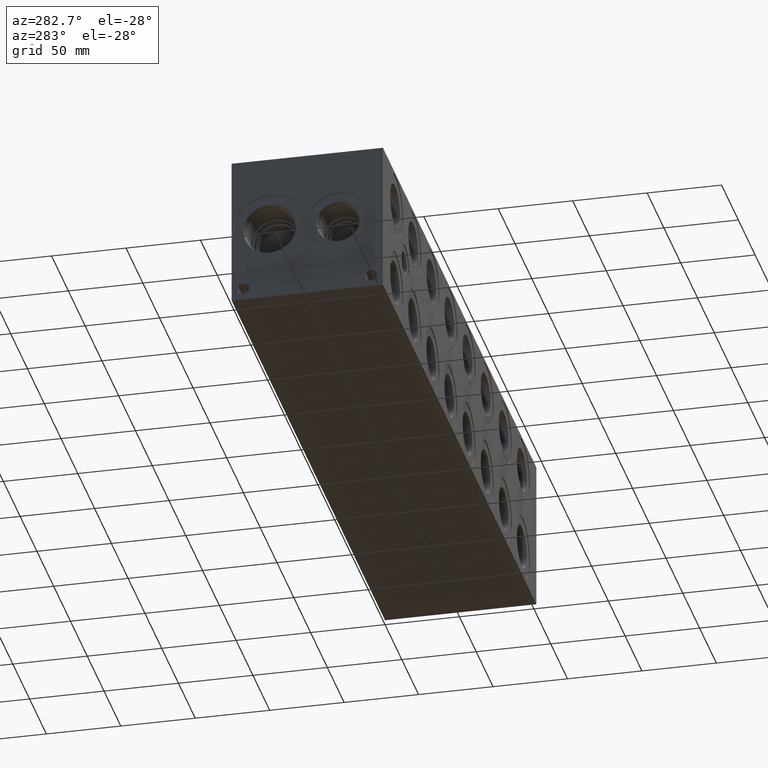
[diagram: clean part render]
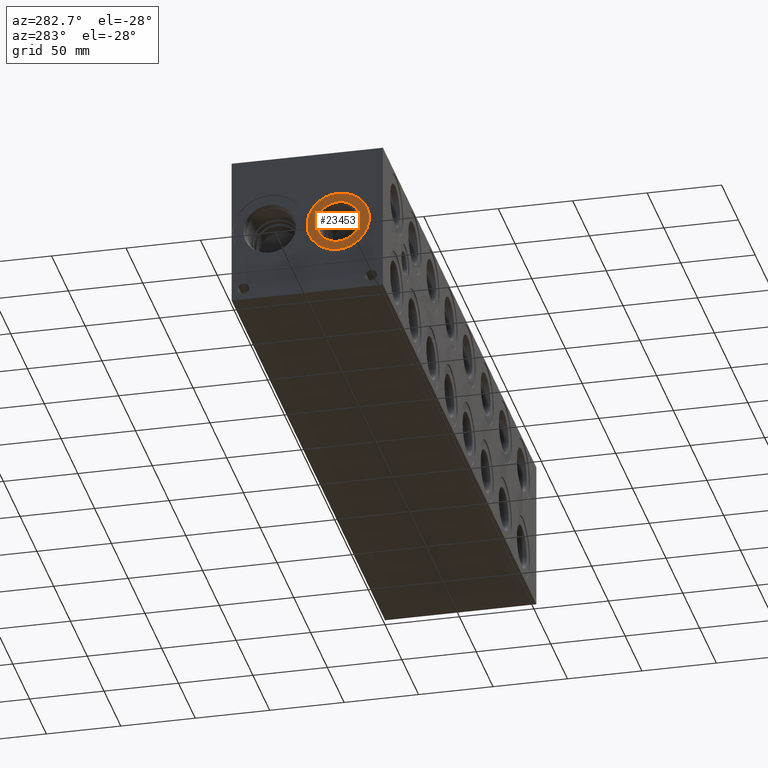
[diagram: same view with one face highlighted and labeled with its STEP entity id]
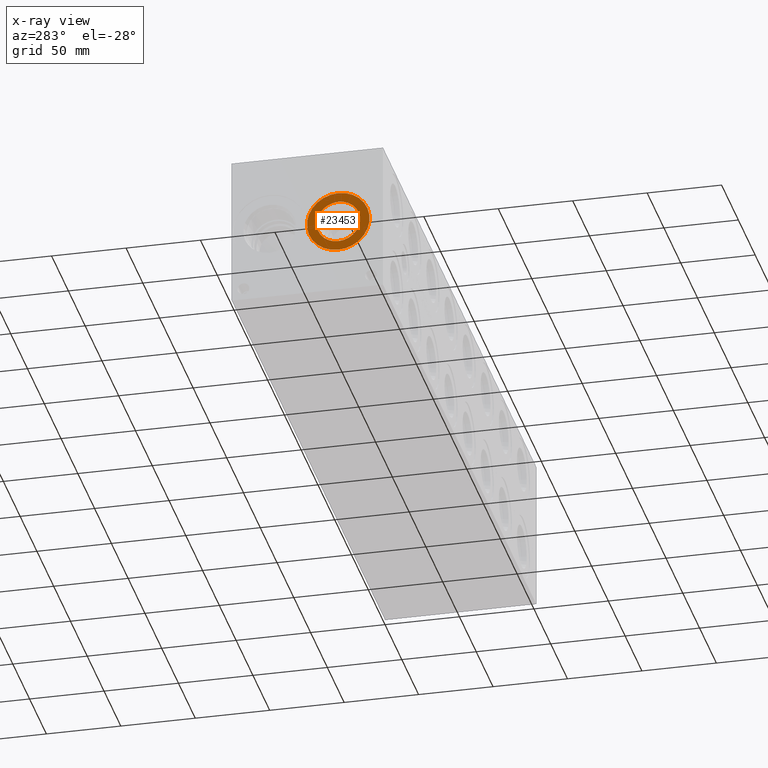
[diagram: x-ray of the same camera — body ghosted, the highlighted face saturated]
A machine part, auxiliary view. The second image highlights one B-rep face of the part: STEP entity #23453.
The next image is the same camera in x-ray: the body ghosted, the highlighted face saturated — about 0% of this face is hidden behind the body in this view.
In plain terms, the highlighted planar face has unit normal (1, 0, 0).
Its self-contained STEP definition (entity closure, byte-faithful):
#849=CIRCLE('',#24610,21.0185);
#850=CIRCLE('',#24611,21.0185);
#851=CIRCLE('',#24613,14.5923);
#852=CIRCLE('',#24614,14.5923);
#2214=FACE_BOUND('',#4561,.T.);
#3187=FACE_OUTER_BOUND('',#4560,.T.);
#4560=EDGE_LOOP('',(#19136,#19137));
#4561=EDGE_LOOP('',(#19138,#19139));
#10519=VERTEX_POINT('',#39538);
#10520=VERTEX_POINT('',#39540);
#10521=VERTEX_POINT('',#39544);
#10522=VERTEX_POINT('',#39545);
#13591=EDGE_CURVE('',#10519,#10520,#849,.T.);
#13592=EDGE_CURVE('',#10520,#10519,#850,.T.);
#13593=EDGE_CURVE('',#10521,#10522,#851,.T.);
#13594=EDGE_CURVE('',#10522,#10521,#852,.T.);
#19136=ORIENTED_EDGE('',*,*,#13592,.F.);
#19137=ORIENTED_EDGE('',*,*,#13591,.F.);
#19138=ORIENTED_EDGE('',*,*,#13593,.T.);
#19139=ORIENTED_EDGE('',*,*,#13594,.T.);
#21819=PLANE('',#24612);
#23453=ADVANCED_FACE('',(#3187,#2214),#21819,.F.);
#24610=AXIS2_PLACEMENT_3D('',#39541,#28757,#28758);
#24611=AXIS2_PLACEMENT_3D('',#39542,#28759,#28760);
#24612=AXIS2_PLACEMENT_3D('',#39543,#28761,#28762);
#24613=AXIS2_PLACEMENT_3D('',#39546,#28763,#28764);
#24614=AXIS2_PLACEMENT_3D('',#39547,#28765,#28766);
#28757=DIRECTION('center_axis',(1.,0.,0.));
#28758=DIRECTION('ref_axis',(0.,0.,-1.));
#28759=DIRECTION('center_axis',(1.,0.,0.));
#28760=DIRECTION('ref_axis',(0.,0.,-1.));
#28761=DIRECTION('center_axis',(1.,0.,0.));
#28762=DIRECTION('ref_axis',(0.,0.,-1.));
#28763=DIRECTION('center_axis',(1.,0.,0.));
#28764=DIRECTION('ref_axis',(0.,0.,-1.));
#28765=DIRECTION('center_axis',(1.,0.,0.));
#28766=DIRECTION('ref_axis',(0.,0.,-1.));
#39538=CARTESIAN_POINT('',(0.7874,30.1752,29.7815));
#39540=CARTESIAN_POINT('',(0.7874,30.1752,71.8185));
#39541=CARTESIAN_POINT('Origin',(0.7874,30.1752,50.8));
#39542=CARTESIAN_POINT('Origin',(0.7874,30.1752,50.8));
#39543=CARTESIAN_POINT('Origin',(0.7874,30.1752,65.3923));
#39544=CARTESIAN_POINT('',(0.7874,30.1752,65.3923));
#39545=CARTESIAN_POINT('',(0.787399999999999,30.1752,36.2077));
#39546=CARTESIAN_POINT('Origin',(0.7874,30.1752,50.8));
#39547=CARTESIAN_POINT('Origin',(0.7874,30.1752,50.8));